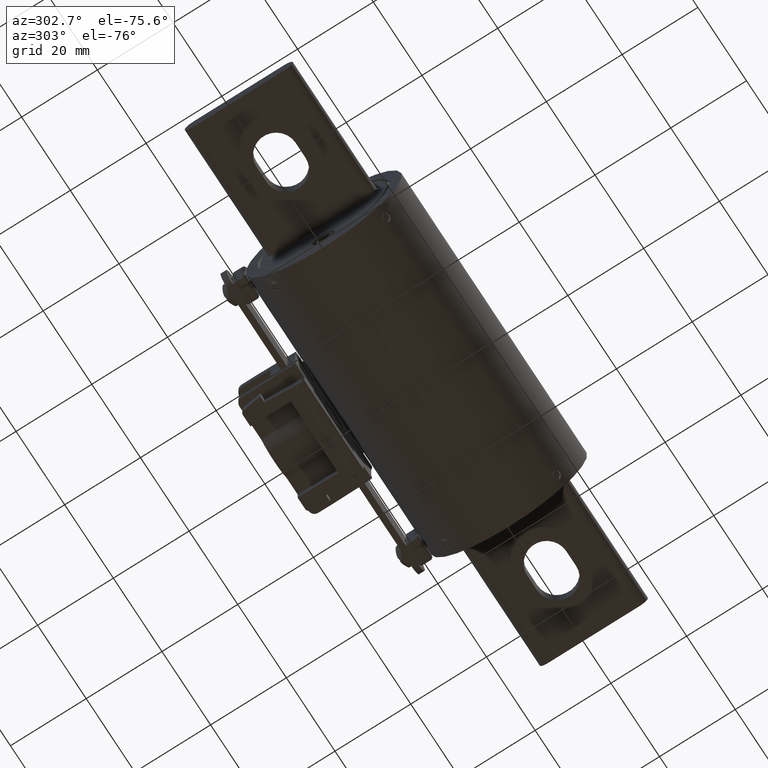
[diagram: clean part render]
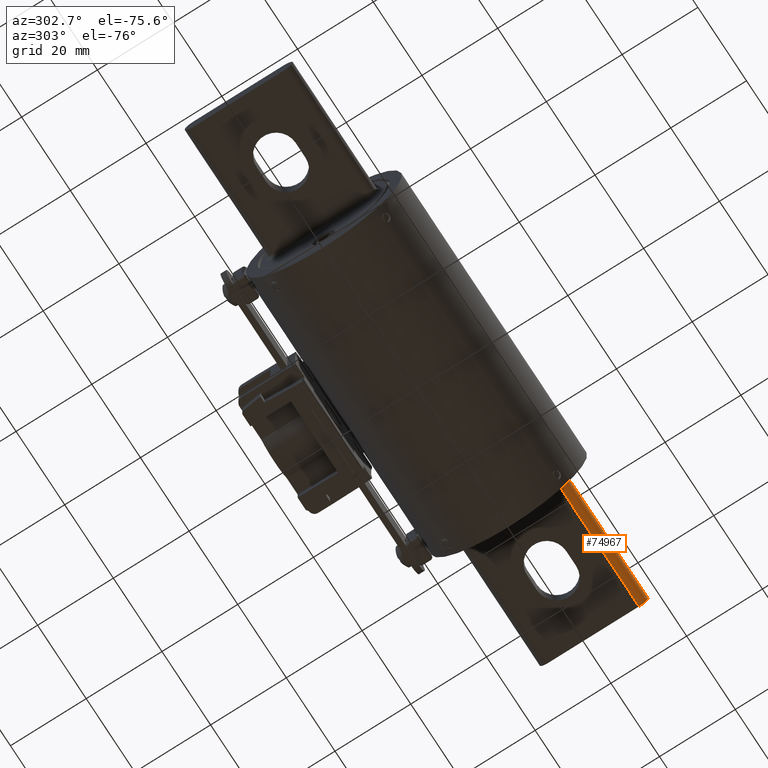
[diagram: same view with one face highlighted and labeled with its STEP entity id]
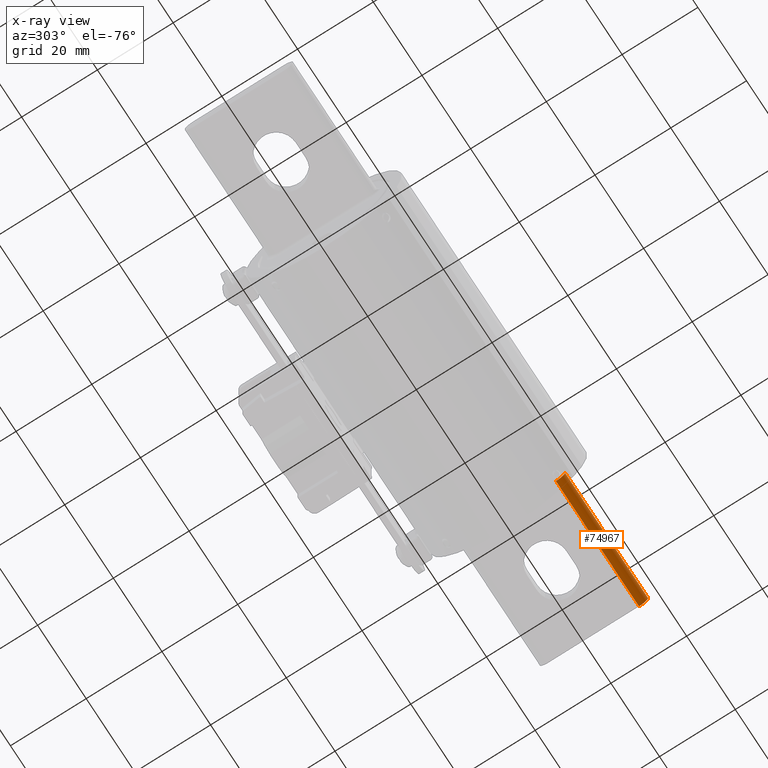
[diagram: x-ray of the same camera — body ghosted, the highlighted face saturated]
A machine part, auxiliary view. The second image highlights one B-rep face of the part: STEP entity #74967.
The next image is the same camera in x-ray: the body ghosted, the highlighted face saturated — about 0% of this face is hidden behind the body in this view.
In plain terms, the highlighted cylindrical surface (edge-blend (fillet) strip) has radius 2.3813 mm, axis along (-1, 0, 0).
Its self-contained STEP definition (entity closure, byte-faithful):
#971 = CARTESIAN_POINT ( 'NONE',  ( 1.530000000000000000, -0.5625000000000015500, 1.652989234472232700E-016 ) ) ;
#1285 = DIRECTION ( 'NONE',  ( 1.000000000000000000, -1.385215645413151800E-017, -1.885844084249406100E-018 ) ) ;
#2649 = FACE_OUTER_BOUND ( 'NONE', #12148, .T. ) ;
#4323 = ORIENTED_EDGE ( 'NONE', *, *, #74587, .T. ) ;
#8393 = CARTESIAN_POINT ( 'NONE',  ( 1.530000000000000000, -0.4687500000000015000, -0.09374999999999984700 ) ) ;
#12148 = EDGE_LOOP ( 'NONE', ( #110644, #76944, #4323, #85538 ) ) ;
#13014 = DIRECTION ( 'NONE',  ( -1.000000000000000000, 1.385215645413151900E-017, 1.885844084249406100E-018 ) ) ;
#15625 = CIRCLE ( 'NONE', #101346, 0.09375000000000019400 ) ;
#15755 = LINE ( 'NONE', #68187, #108773 ) ;
#16656 = CARTESIAN_POINT ( 'NONE',  ( 2.875000000000000400, -0.4687500000000011700, 1.461413574545546800E-016 ) ) ;
#23258 = EDGE_CURVE ( 'NONE', #93071, #60242, #15755, .T. ) ;
#23643 = DIRECTION ( 'NONE',  ( -1.000000000000000000, 1.385215645413151900E-017, 1.885844084249406100E-018 ) ) ;
#25776 = DIRECTION ( 'NONE',  ( 0.0000000000000000000, 1.000000000000000000, -1.908195823574485100E-016 ) ) ;
#28097 = CARTESIAN_POINT ( 'NONE',  ( 2.875000000000000400, -0.4687500000000011700, 1.461413574545546800E-016 ) ) ;
#30940 = CYLINDRICAL_SURFACE ( 'NONE', #46285, 0.09375000000000019400 ) ;
#34962 = VERTEX_POINT ( 'NONE', #60313 ) ;
#35597 = EDGE_CURVE ( 'NONE', #93071, #34962, #39752, .T. ) ;
#39752 = CIRCLE ( 'NONE', #91470, 0.09375000000000019400 ) ;
#46285 = AXIS2_PLACEMENT_3D ( 'NONE', #28097, #64028, #82422 ) ;
#46298 = VECTOR ( 'NONE', #13014, 39.37007874015748100 ) ;
#52337 = CARTESIAN_POINT ( 'NONE',  ( 2.875000000000000400, -0.5625000000000012200, 1.652989234472231900E-016 ) ) ;
#55483 = CARTESIAN_POINT ( 'NONE',  ( 1.530000000000000000, -0.4687500000000015000, 1.486778177478701800E-016 ) ) ;
#57675 = CARTESIAN_POINT ( 'NONE',  ( 2.875000000000000400, -0.4687500000000011700, -0.09374999999999984700 ) ) ;
#60242 = VERTEX_POINT ( 'NONE', #971 ) ;
#60313 = CARTESIAN_POINT ( 'NONE',  ( 2.875000000000000400, -0.4687500000000011700, -0.09374999999999984700 ) ) ;
#61243 = VERTEX_POINT ( 'NONE', #8393 ) ;
#64028 = DIRECTION ( 'NONE',  ( -1.000000000000000000, 1.385215645413151800E-017, 1.885844084249406100E-018 ) ) ;
#64509 = DIRECTION ( 'NONE',  ( 0.0000000000000000000, 1.000000000000000000, -1.908195823574485100E-016 ) ) ;
#68187 = CARTESIAN_POINT ( 'NONE',  ( 2.875000000000000400, -0.5625000000000013300, 1.640306933005655000E-016 ) ) ;
#70376 = LINE ( 'NONE', #57675, #46298 ) ;
#74587 = EDGE_CURVE ( 'NONE', #60242, #61243, #15625, .T. ) ;
#74967 = ADVANCED_FACE ( 'NONE', ( #2649 ), #30940, .T. ) ;
#76944 = ORIENTED_EDGE ( 'NONE', *, *, #23258, .T. ) ;
#79779 = DIRECTION ( 'NONE',  ( 1.000000000000000000, -1.385215645413151800E-017, -1.885844084249406100E-018 ) ) ;
#82422 = DIRECTION ( 'NONE',  ( 0.0000000000000000000, -1.000000000000000000, 1.908195823574485100E-016 ) ) ;
#85538 = ORIENTED_EDGE ( 'NONE', *, *, #86308, .F. ) ;
#86308 = EDGE_CURVE ( 'NONE', #34962, #61243, #70376, .T. ) ;
#91470 = AXIS2_PLACEMENT_3D ( 'NONE', #16656, #79779, #25776 ) ;
#93071 = VERTEX_POINT ( 'NONE', #52337 ) ;
#101346 = AXIS2_PLACEMENT_3D ( 'NONE', #55483, #1285, #64509 ) ;
#108773 = VECTOR ( 'NONE', #23643, 39.37007874015748100 ) ;
#110644 = ORIENTED_EDGE ( 'NONE', *, *, #35597, .F. ) ;